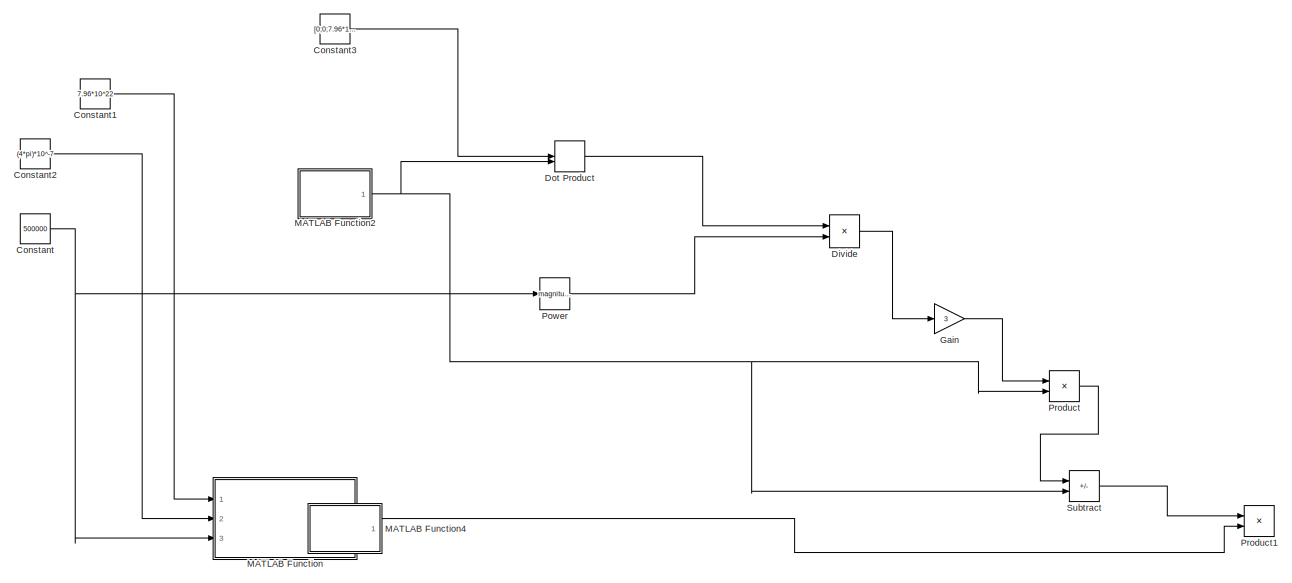
[diagram: root canvas - part 1/3, top right region]
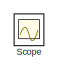
[diagram: root canvas - part 2/3, top left region]
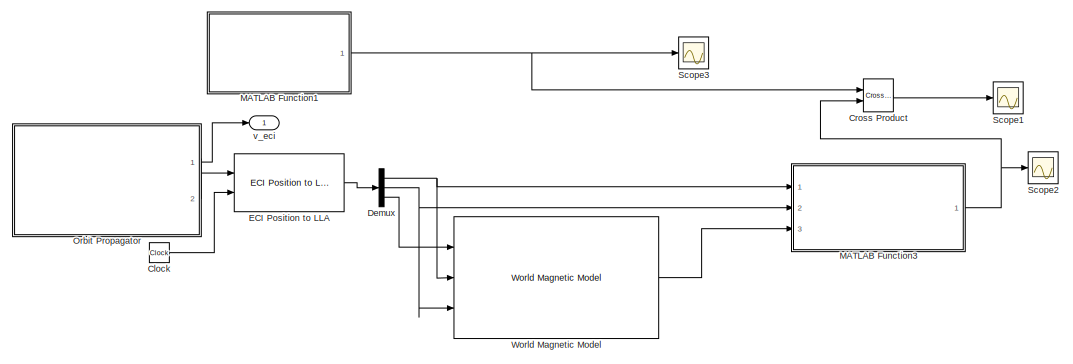
[diagram: root canvas - part 3/3, bottom center region]
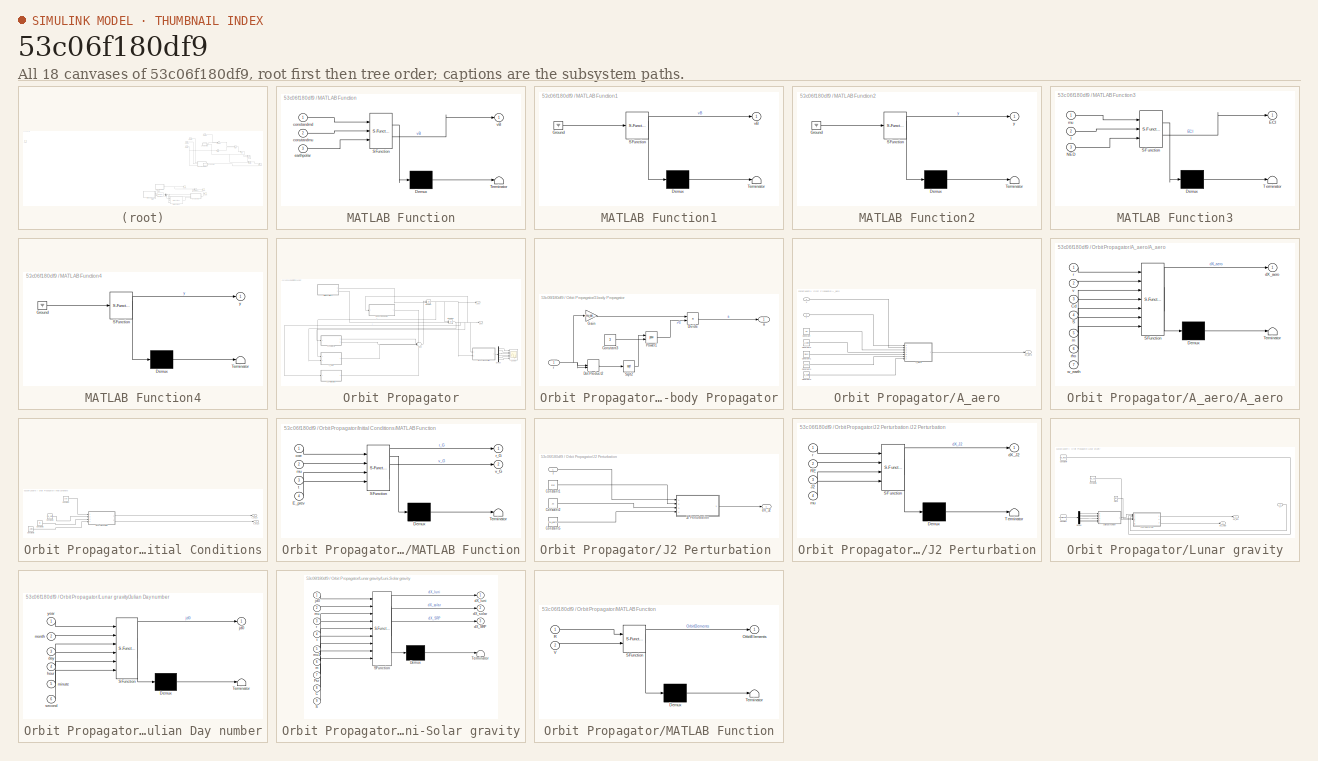
[diagram: thumbnail index - all 18 canvases of the model, root first then tree order]
MODEL slx_53c06f180df9
KIND model
CONFIG AbsTol = auto
CONFIG EnableMultiTasking = off
CONFIG FixedStep = auto
CONFIG MaxStep = auto
CONFIG MinStep = auto
CONFIG RelTol = 1e-3
CONFIG SampleTimeConstraint = Unconstrained
CONFIG SolverName = VariableStepAuto
CONFIG StartTime = 0.0
CONFIG StopTime = 10.0
BLOCK [Clock] Clock
BLOCK [Constant] Constant
  Commented = on
  Value = 500000
BLOCK [Constant] Constant1
  Commented = on
  Value = 7.96*10^22
BLOCK [Constant] Constant2
  Commented = on
  Value = (4*pi)*10^-7
BLOCK [Constant] Constant3
  Commented = on
  Value = [0;0;7.96*10^22]
BLOCK [Reference] Cross Product  REF=vrlib/Utilities/Cross Product
  Ports = [2, 1]
  SourceBlock = vrlib/Utilities/Cross Product
  SourceProductBaseCode = SL
  SourceType = Cross Product
BLOCK [Demux] Demux
  Outputs = 3
  Ports = [1, 3]
BLOCK [Product] Divide
  Commented = on
  Inputs = */
  Ports = [2, 1]
BLOCK [DotProduct] Dot Product
  Commented = on
  OutDataTypeStr = Inherit: Inherit via internal rule
BLOCK [Reference] ECI Position to LLA  REF=aerolibtransform2/ECI Position to LLA
  AttributesFormatString = %<red>
  Ports = [2, 1]
  SourceBlock = aerolibtransform2/ECI Position to LLA
  SourceProductBaseCode = AE
  SourceType = ECItoLLA
BLOCK [Gain] Gain
  Commented = on
  Gain = 3
BLOCK [SubSystem] MATLAB Function
  Commented = on
  ErrorFcn = Stateflow.Translate.translate
  PermitHierarchicalResolution = ExplicitOnly
  Ports = [3, 1]
  RequestExecContextInheritance = off
  SFBlockType = MATLAB Function
  TreatAsAtomicUnit = on
BLOCK [Demux] MATLAB Function/ Demux 
  Outputs = 1
  Ports = [1, 1]
BLOCK [S-Function] MATLAB Function/ SFunction 
  EnableBusSupport = on
  FunctionName = sf_sfun
  PortCounts = [3 2]
  Ports = [3, 2]
  SFcnIsStateOwnerBlock = off
  SFunctionDeploymentMode = off
  Tag = Stateflow S-Function 2
BLOCK [Terminator] MATLAB Function/ Terminator 
BLOCK [Inport] MATLAB Function/constandmd
BLOCK [Inport] MATLAB Function/constandmu
  Port = 2
BLOCK [Inport] MATLAB Function/earthpolar
  Port = 3
BLOCK [Outport] MATLAB Function/vB
BLOCK [SubSystem] MATLAB Function1
  ErrorFcn = Stateflow.Translate.translate
  PermitHierarchicalResolution = ExplicitOnly
  Ports = [0, 1]
  RequestExecContextInheritance = off
  SFBlockType = MATLAB Function
  TreatAsAtomicUnit = on
BLOCK [Demux] MATLAB Function1/ Demux 
  Outputs = 1
  Ports = [1, 1]
BLOCK [Ground] MATLAB Function1/ Ground 
BLOCK [S-Function] MATLAB Function1/ SFunction 
  EnableBusSupport = on
  FunctionName = sf_sfun
  PortCounts = [1 2]
  Ports = [1, 2]
  SFcnIsStateOwnerBlock = off
  SFunctionDeploymentMode = off
  Tag = Stateflow S-Function 1
BLOCK [Terminator] MATLAB Function1/ Terminator 
BLOCK [Outport] MATLAB Function1/vB
BLOCK [SubSystem] MATLAB Function2
  Commented = on
  ErrorFcn = Stateflow.Translate.translate
  PermitHierarchicalResolution = ExplicitOnly
  Ports = [0, 1]
  RequestExecContextInheritance = off
  SFBlockType = MATLAB Function
  TreatAsAtomicUnit = on
BLOCK [Demux] MATLAB Function2/ Demux 
  Outputs = 1
  Ports = [1, 1]
BLOCK [Ground] MATLAB Function2/ Ground 
BLOCK [S-Function] MATLAB Function2/ SFunction 
  EnableBusSupport = on
  FunctionName = sf_sfun
  PortCounts = [1 2]
  Ports = [1, 2]
  SFcnIsStateOwnerBlock = off
  SFunctionDeploymentMode = off
  Tag = Stateflow S-Function 3
BLOCK [Terminator] MATLAB Function2/ Terminator 
BLOCK [Outport] MATLAB Function2/y
BLOCK [SubSystem] MATLAB Function3
  ErrorFcn = Stateflow.Translate.translate
  PermitHierarchicalResolution = ExplicitOnly
  Ports = [3, 1]
  RequestExecContextInheritance = off
  SFBlockType = MATLAB Function
  TreatAsAtomicUnit = on
BLOCK [Demux] MATLAB Function3/ Demux 
  Outputs = 1
  Ports = [1, 1]
BLOCK [S-Function] MATLAB Function3/ SFunction 
  EnableBusSupport = on
  FunctionName = sf_sfun
  PortCounts = [3 2]
  Ports = [3, 2]
  SFcnIsStateOwnerBlock = off
  SFunctionDeploymentMode = off
  Tag = Stateflow S-Function 11
BLOCK [Terminator] MATLAB Function3/ Terminator 
BLOCK [Outport] MATLAB Function3/ECI
BLOCK [Inport] MATLAB Function3/NED
  Port = 3
BLOCK [Inport] MATLAB Function3/l
  Port = 2
BLOCK [Inport] MATLAB Function3/mu
BLOCK [SubSystem] MATLAB Function4
  Commented = on
  ErrorFcn = Stateflow.Translate.translate
  PermitHierarchicalResolution = ExplicitOnly
  Ports = [0, 1]
  RequestExecContextInheritance = off
  SFBlockType = MATLAB Function
  TreatAsAtomicUnit = on
BLOCK [Demux] MATLAB Function4/ Demux 
  Outputs = 1
  Ports = [1, 1]
BLOCK [Ground] MATLAB Function4/ Ground 
BLOCK [S-Function] MATLAB Function4/ SFunction 
  EnableBusSupport = on
  FunctionName = sf_sfun
  PortCounts = [1 2]
  Ports = [1, 2]
  SFcnIsStateOwnerBlock = off
  SFunctionDeploymentMode = off
  Tag = Stateflow S-Function 10
BLOCK [Terminator] MATLAB Function4/ Terminator 
BLOCK [Outport] MATLAB Function4/y
BLOCK [SubSystem] Orbit Propagator
  Ports = [0, 2]
  RequestExecContextInheritance = off
BLOCK [SubSystem] Orbit Propagator/2-body Propagator
  Ports = [1, 1]
  RequestExecContextInheritance = off
BLOCK [Constant] Orbit Propagator/2-body Propagator/Constant3
  Value = 3
BLOCK [Product] Orbit Propagator/2-body Propagator/Divide
  Inputs = */
  Ports = [2, 1]
BLOCK [DotProduct] Orbit Propagator/2-body Propagator/Dot Product2
  OutDataTypeStr = Inherit: Inherit via internal rule
BLOCK [Gain] Orbit Propagator/2-body Propagator/Gain
  Gain = -mu_earth
BLOCK [Math] Orbit Propagator/2-body Propagator/Power1
  Operator = pow
  Ports = [2, 1]
  SignedPower = on
BLOCK [Sqrt] Orbit Propagator/2-body Propagator/Sqrt2
BLOCK [Outport] Orbit Propagator/2-body Propagator/a
  VectorParamsAs1DForOutWhenUnconnected = off
BLOCK [Inport] Orbit Propagator/2-body Propagator/r
BLOCK [SubSystem] Orbit Propagator/A_aero
  Commented = on
  Ports = [2, 1]
  RequestExecContextInheritance = off
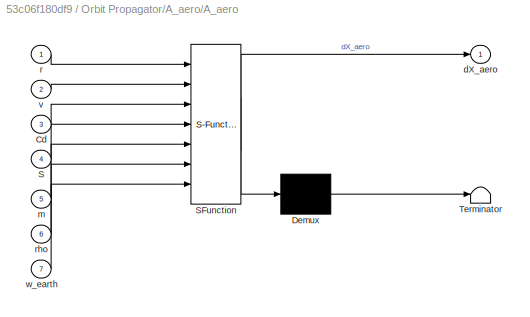
BLOCK [SubSystem] Orbit Propagator/A_aero/A_aero
  ErrorFcn = Stateflow.Translate.translate
  PermitHierarchicalResolution = ExplicitOnly
  Ports = [7, 1]
  RequestExecContextInheritance = off
  SFBlockType = MATLAB Function
  TreatAsAtomicUnit = on
BLOCK [Demux] Orbit Propagator/A_aero/A_aero/ Demux 
  Outputs = 1
  Ports = [1, 1]
BLOCK [S-Function] Orbit Propagator/A_aero/A_aero/ SFunction 
  EnableBusSupport = on
  FunctionName = sf_sfun
  PortCounts = [7 2]
  Ports = [7, 2]
  SFcnIsStateOwnerBlock = off
  SFunctionDeploymentMode = off
  Tag = Stateflow S-Function 4
BLOCK [Terminator] Orbit Propagator/A_aero/A_aero/ Terminator 
BLOCK [Inport] Orbit Propagator/A_aero/A_aero/Cd
  Port = 3
BLOCK [Inport] Orbit Propagator/A_aero/A_aero/S
  Port = 4
BLOCK [Outport] Orbit Propagator/A_aero/A_aero/dX_aero
  VectorParamsAs1DForOutWhenUnconnected = off
BLOCK [Inport] Orbit Propagator/A_aero/A_aero/m
  Port = 5
BLOCK [Inport] Orbit Propagator/A_aero/A_aero/r
BLOCK [Inport] Orbit Propagator/A_aero/A_aero/rho
  Port = 6
BLOCK [Inport] Orbit Propagator/A_aero/A_aero/v
  Port = 2
BLOCK [Inport] Orbit Propagator/A_aero/A_aero/w_earth
  Port = 7
BLOCK [Constant] Orbit Propagator/A_aero/Constant
  Value = Cd
BLOCK [Constant] Orbit Propagator/A_aero/Constant1
  Value = mass
BLOCK [Constant] Orbit Propagator/A_aero/Constant2
  Value = S_norm
BLOCK [Constant] Orbit Propagator/A_aero/Constant3
  Value = w_earth
BLOCK [Constant] Orbit Propagator/A_aero/Constant4
  Value = 2.01e-12
BLOCK [Outport] Orbit Propagator/A_aero/dX_aero
  VectorParamsAs1DForOutWhenUnconnected = off
BLOCK [Inport] Orbit Propagator/A_aero/r
  Port = 2
BLOCK [Inport] Orbit Propagator/A_aero/v
BLOCK [Demux] Orbit Propagator/Demux
  Outputs = 6
  Ports = [1, 6]
BLOCK [SubSystem] Orbit Propagator/Initial Conditions
  Ports = [0, 2]
  RequestExecContextInheritance = off
BLOCK [Constant] Orbit Propagator/Initial Conditions/Constant
  Value = coe
BLOCK [Constant] Orbit Propagator/Initial Conditions/Constant1
  Value = mu_earth
BLOCK [Constant] Orbit Propagator/Initial Conditions/Constant2
  Value = t0
BLOCK [Constant] Orbit Propagator/Initial Conditions/Constant3
  Value = E_prev
BLOCK [SubSystem] Orbit Propagator/Initial Conditions/MATLAB Function
  ErrorFcn = Stateflow.Translate.translate
  PermitHierarchicalResolution = ExplicitOnly
  Ports = [4, 2]
  RequestExecContextInheritance = off
  SFBlockType = MATLAB Function
  TreatAsAtomicUnit = on
BLOCK [Demux] Orbit Propagator/Initial Conditions/MATLAB Function/ Demux 
  Outputs = 1
  Ports = [1, 1]
BLOCK [S-Function] Orbit Propagator/Initial Conditions/MATLAB Function/ SFunction 
  EnableBusSupport = on
  FunctionName = sf_sfun
  PortCounts = [4 3]
  Ports = [4, 3]
  SFcnIsStateOwnerBlock = off
  SFunctionDeploymentMode = off
  Tag = Stateflow S-Function 5
BLOCK [Terminator] Orbit Propagator/Initial Conditions/MATLAB Function/ Terminator 
BLOCK [Inport] Orbit Propagator/Initial Conditions/MATLAB Function/E_prev
  Port = 4
BLOCK [Inport] Orbit Propagator/Initial Conditions/MATLAB Function/coe
BLOCK [Inport] Orbit Propagator/Initial Conditions/MATLAB Function/mu
  Port = 2
BLOCK [Outport] Orbit Propagator/Initial Conditions/MATLAB Function/r_G
  VectorParamsAs1DForOutWhenUnconnected = off
BLOCK [Inport] Orbit Propagator/Initial Conditions/MATLAB Function/t
  Port = 3
BLOCK [Outport] Orbit Propagator/Initial Conditions/MATLAB Function/v_G
  Port = 2
  VectorParamsAs1DForOutWhenUnconnected = off
BLOCK [Outport] Orbit Propagator/Initial Conditions/r_eci_0
  Port = 2
  VectorParamsAs1DForOutWhenUnconnected = off
BLOCK [Outport] Orbit Propagator/Initial Conditions/v_eci_0
  VectorParamsAs1DForOutWhenUnconnected = off
BLOCK [Integrator] Orbit Propagator/Integrator
  InitialCondition = v0
  InitialConditionSource = external
  Ports = [2, 1]
BLOCK [Integrator] Orbit Propagator/Integrator1
  InitialCondition = v0
  InitialConditionSource = external
  Ports = [2, 1]
BLOCK [SubSystem] Orbit Propagator/J2 Perturbation 
  Ports = [1, 1]
  RequestExecContextInheritance = off
BLOCK [Constant] Orbit Propagator/J2 Perturbation /Constant1
  Value = RE
BLOCK [Constant] Orbit Propagator/J2 Perturbation /Constant2
  Value = J2
BLOCK [Constant] Orbit Propagator/J2 Perturbation /Constant5
  Value = mu_earth
BLOCK [SubSystem] Orbit Propagator/J2 Perturbation /J2 Perturbation
  ErrorFcn = Stateflow.Translate.translate
  PermitHierarchicalResolution = ExplicitOnly
  Ports = [4, 1]
  RequestExecContextInheritance = off
  SFBlockType = MATLAB Function
  TreatAsAtomicUnit = on
BLOCK [Demux] Orbit Propagator/J2 Perturbation /J2 Perturbation/ Demux 
  Outputs = 1
  Ports = [1, 1]
BLOCK [S-Function] Orbit Propagator/J2 Perturbation /J2 Perturbation/ SFunction 
  EnableBusSupport = on
  FunctionName = sf_sfun
  PortCounts = [4 2]
  Ports = [4, 2]
  SFcnIsStateOwnerBlock = off
  SFunctionDeploymentMode = off
  Tag = Stateflow S-Function 6
BLOCK [Terminator] Orbit Propagator/J2 Perturbation /J2 Perturbation/ Terminator 
BLOCK [Inport] Orbit Propagator/J2 Perturbation /J2 Perturbation/J2
  Port = 3
BLOCK [Inport] Orbit Propagator/J2 Perturbation /J2 Perturbation/RE
  Port = 2
BLOCK [Outport] Orbit Propagator/J2 Perturbation /J2 Perturbation/dX_J2
  VectorParamsAs1DForOutWhenUnconnected = off
BLOCK [Inport] Orbit Propagator/J2 Perturbation /J2 Perturbation/mu
  Port = 4
BLOCK [Inport] Orbit Propagator/J2 Perturbation /J2 Perturbation/r
BLOCK [Outport] Orbit Propagator/J2 Perturbation /dX_J2
  VectorParamsAs1DForOutWhenUnconnected = off
BLOCK [Inport] Orbit Propagator/J2 Perturbation /r
BLOCK [SubSystem] Orbit Propagator/Lunar gravity
  Commented = on
  Ports = [1, 2]
  RequestExecContextInheritance = off
BLOCK [Clock] Orbit Propagator/Lunar gravity/Clock
BLOCK [Constant] Orbit Propagator/Lunar gravity/Constant
  Value = [year,month,day,hours,minutes,seconds]
BLOCK [Constant] Orbit Propagator/Lunar gravity/Constant4
  Value = mu_moon
BLOCK [Constant] Orbit Propagator/Lunar gravity/Constant6
  Value = mu_sun
BLOCK [Demux] Orbit Propagator/Lunar gravity/Demux
  Outputs = 6
  Ports = [1, 6]
BLOCK [SubSystem] Orbit Propagator/Lunar gravity/Julian Day number
  ErrorFcn = Stateflow.Translate.translate
  PermitHierarchicalResolution = ExplicitOnly
  Ports = [6, 1]
  RequestExecContextInheritance = off
  SFBlockType = MATLAB Function
  TreatAsAtomicUnit = on
BLOCK [Demux] Orbit Propagator/Lunar gravity/Julian Day number/ Demux 
  Outputs = 1
  Ports = [1, 1]
BLOCK [S-Function] Orbit Propagator/Lunar gravity/Julian Day number/ SFunction 
  EnableBusSupport = on
  FunctionName = sf_sfun
  PortCounts = [6 2]
  Ports = [6, 2]
  SFcnIsStateOwnerBlock = off
  SFunctionDeploymentMode = off
  Tag = Stateflow S-Function 7
BLOCK [Terminator] Orbit Propagator/Lunar gravity/Julian Day number/ Terminator 
BLOCK [Inport] Orbit Propagator/Lunar gravity/Julian Day number/day
  Port = 3
BLOCK [Inport] Orbit Propagator/Lunar gravity/Julian Day number/hour
  Port = 4
BLOCK [Outport] Orbit Propagator/Lunar gravity/Julian Day number/jd0
  VectorParamsAs1DForOutWhenUnconnected = off
BLOCK [Inport] Orbit Propagator/Lunar gravity/Julian Day number/minute
  Port = 5
BLOCK [Inport] Orbit Propagator/Lunar gravity/Julian Day number/month
  Port = 2
BLOCK [Inport] Orbit Propagator/Lunar gravity/Julian Day number/second
  Port = 6
BLOCK [Inport] Orbit Propagator/Lunar gravity/Julian Day number/year
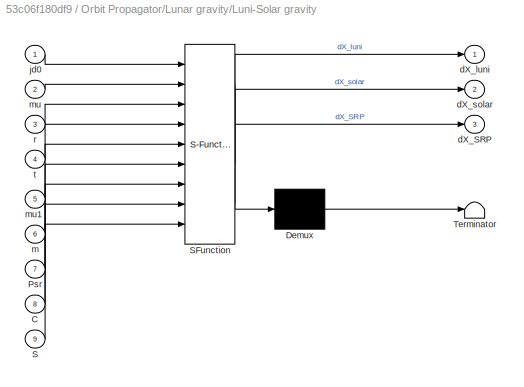
BLOCK [SubSystem] Orbit Propagator/Lunar gravity/Luni-Solar gravity
  ErrorFcn = Stateflow.Translate.translate
  PermitHierarchicalResolution = ExplicitOnly
  Ports = [9, 3]
  RequestExecContextInheritance = off
  SFBlockType = MATLAB Function
  TreatAsAtomicUnit = on
BLOCK [Demux] Orbit Propagator/Lunar gravity/Luni-Solar gravity/ Demux 
  Outputs = 1
  Ports = [1, 1]
BLOCK [S-Function] Orbit Propagator/Lunar gravity/Luni-Solar gravity/ SFunction 
  EnableBusSupport = on
  FunctionName = sf_sfun
  PortCounts = [9 4]
  Ports = [9, 4]
  SFcnIsStateOwnerBlock = off
  SFunctionDeploymentMode = off
  Tag = Stateflow S-Function 8
BLOCK [Terminator] Orbit Propagator/Lunar gravity/Luni-Solar gravity/ Terminator 
BLOCK [Inport] Orbit Propagator/Lunar gravity/Luni-Solar gravity/C
  Port = 8
BLOCK [Inport] Orbit Propagator/Lunar gravity/Luni-Solar gravity/Psr
  Port = 7
BLOCK [Inport] Orbit Propagator/Lunar gravity/Luni-Solar gravity/S
  Port = 9
BLOCK [Outport] Orbit Propagator/Lunar gravity/Luni-Solar gravity/dX_SRP
  Port = 3
  VectorParamsAs1DForOutWhenUnconnected = off
BLOCK [Outport] Orbit Propagator/Lunar gravity/Luni-Solar gravity/dX_luni
  VectorParamsAs1DForOutWhenUnconnected = off
BLOCK [Outport] Orbit Propagator/Lunar gravity/Luni-Solar gravity/dX_solar
  Port = 2
  VectorParamsAs1DForOutWhenUnconnected = off
BLOCK [Inport] Orbit Propagator/Lunar gravity/Luni-Solar gravity/jd0
BLOCK [Inport] Orbit Propagator/Lunar gravity/Luni-Solar gravity/m
  Port = 6
BLOCK [Inport] Orbit Propagator/Lunar gravity/Luni-Solar gravity/mu
  Port = 2
BLOCK [Inport] Orbit Propagator/Lunar gravity/Luni-Solar gravity/mu1
  Port = 5
BLOCK [Inport] Orbit Propagator/Lunar gravity/Luni-Solar gravity/r
  Port = 3
BLOCK [Inport] Orbit Propagator/Lunar gravity/Luni-Solar gravity/t
  Port = 4
BLOCK [Outport] Orbit Propagator/Lunar gravity/dX_luni
  VectorParamsAs1DForOutWhenUnconnected = off
BLOCK [Outport] Orbit Propagator/Lunar gravity/dX_solar
  Port = 2
  VectorParamsAs1DForOutWhenUnconnected = off
BLOCK [Inport] Orbit Propagator/Lunar gravity/r
BLOCK [SubSystem] Orbit Propagator/MATLAB Function
  ErrorFcn = Stateflow.Translate.translate
  PermitHierarchicalResolution = ExplicitOnly
  Ports = [2, 1]
  RequestExecContextInheritance = off
  SFBlockType = MATLAB Function
  TreatAsAtomicUnit = on
BLOCK [Demux] Orbit Propagator/MATLAB Function/ Demux 
  Outputs = 1
  Ports = [1, 1]
BLOCK [S-Function] Orbit Propagator/MATLAB Function/ SFunction 
  EnableBusSupport = on
  FunctionName = sf_sfun
  PortCounts = [2 2]
  Ports = [2, 2]
  SFcnIsStateOwnerBlock = off
  SFunctionDeploymentMode = off
  Tag = Stateflow S-Function 9
BLOCK [Terminator] Orbit Propagator/MATLAB Function/ Terminator 
BLOCK [Outport] Orbit Propagator/MATLAB Function/OrbitElements
  VectorParamsAs1DForOutWhenUnconnected = off
BLOCK [Inport] Orbit Propagator/MATLAB Function/R
BLOCK [Inport] Orbit Propagator/MATLAB Function/V
  Port = 2
BLOCK [Scope] Orbit Propagator/Scope
  Floating = off
  NumInputPorts = 6
  Ports = [6]
  ScopeSpecificationString = Simulink.scopes.TimeScopeBlockCfg('CurrentConfiguration', extmgr.ConfigurationSet(extmgr.Configuration('Core','General UI',true),extmgr.Configuration('Core','Source UI',true),extmgr.Configuration('Sources','WiredSimulink',true,'DataLoggingVariableName','ScopeData2'),extmgr.Configuration('Visuals','Time Domain',true,'SerializedDisplays',{struct('MinYLimReal','6606562.10759','MaxYLimReal','7662454.0...<+4798ch>
BLOCK [Sum] Orbit Propagator/Sum
  Inputs = +++++
  Ports = [5, 1]
BLOCK [Outport] Orbit Propagator/r_eci
  Port = 2
  VectorParamsAs1DForOutWhenUnconnected = off
BLOCK [Outport] Orbit Propagator/v_eci
  VectorParamsAs1DForOutWhenUnconnected = off
BLOCK [Math] Power
  Commented = on
  Operator = magnitude^2
  Ports = [1, 1]
BLOCK [Product] Product
  Commented = on
  Ports = [2, 1]
BLOCK [Product] Product1
  Commented = on
  Ports = [2, 1]
BLOCK [Scope] Scope
  Floating = off
  IOType = viewer
  NumInputPorts = 1
  Ports = []
  ScopeSpecificationString = Simulink.scopes.TimeScopeBlockCfg('CurrentConfiguration', extmgr.ConfigurationSet(extmgr.Configuration('Core','General UI',true),extmgr.Configuration('Core','Source UI',true),extmgr.Configuration('Sources','WiredSimulink',true),extmgr.Configuration('Visuals','Time Domain',true,'SerializedDisplays',{struct('MinYLimReal','-10.00000','MaxYLimReal','10.00000','YLabelReal','','MinYLimMag','0.00000','Ma...<+1357ch>
BLOCK [Scope] Scope1
  Floating = off
  NumInputPorts = 1
  Ports = [1]
  ScopeSpecificationString = Simulink.scopes.TimeScopeBlockCfg('CurrentConfiguration', extmgr.ConfigurationSet(extmgr.Configuration('Core','General UI',true),extmgr.Configuration('Core','Source UI',true),extmgr.Configuration('Sources','WiredSimulink',true,'DataLoggingVariableName','ScopeData1'),extmgr.Configuration('Visuals','Time Domain',true,'SerializedDisplays',{struct('MinYLimReal','-6.14848','MaxYLimReal','6.14799','YLab...<+1444ch>
BLOCK [Scope] Scope2
  Floating = off
  NumInputPorts = 1
  Ports = [1]
  ScopeSpecificationString = Simulink.scopes.TimeScopeBlockCfg('CurrentConfiguration', extmgr.ConfigurationSet(extmgr.Configuration('Core','General UI',true),extmgr.Configuration('Core','Source UI',true),extmgr.Configuration('Sources','WiredSimulink',true,'DataLoggingVariableName','ScopeData1'),extmgr.Configuration('Visuals','Time Domain',true,'SerializedDisplays',{struct('MinYLimReal','-5064.60625','MaxYLimReal','55240.27055...<+1504ch>
BLOCK [Scope] Scope3
  Floating = off
  NumInputPorts = 1
  Ports = [1]
  ScopeSpecificationString = Simulink.scopes.TimeScopeBlockCfg('CurrentConfiguration', extmgr.ConfigurationSet(extmgr.Configuration('Core','General UI',true),extmgr.Configuration('Core','Source UI',true),extmgr.Configuration('Sources','WiredSimulink',true,'DataLoggingVariableName','ScopeData3'),extmgr.Configuration('Visuals','Time Domain',true,'SerializedDisplays',{struct('MinYLimReal','-0.00001','MaxYLimReal','0.00011','YLab...<+1453ch>
BLOCK [Sum] Subtract
  Commented = on
  IconShape = rectangular
  Inputs = +-
  Ports = [2, 1]
BLOCK [Reference] World Magnetic Model  REF=aerolibgravity2/World Magnetic Model
  AttributesFormatString = %<model>
  Ports = [3, 1]
  SourceBlock = aerolibgravity2/World Magnetic Model
  SourceProductBaseCode = AE
  SourceType = WorldMagneticModel
BLOCK [Outport] v_eci
  VectorParamsAs1DForOutWhenUnconnected = off
LINE Clock:1 -> ECI Position to LLA:2
LINE Constant1:1 -> MATLAB Function:1
LINE Constant2:1 -> MATLAB Function:2
LINE Constant3:1 -> Dot Product:1
NET Constant:1 -> MATLAB Function:3, Power:1
LINE Cross Product:1 -> Scope1:1
NET Demux:1 -> MATLAB Function3:1, World Magnetic Model:2
NET Demux:2 -> MATLAB Function3:2, World Magnetic Model:3
LINE Demux:3 -> World Magnetic Model:1
LINE Divide:1 -> Gain:1
LINE Dot Product:1 -> Divide:1
LINE ECI Position to LLA:1 -> Demux:1
LINE Gain:1 -> Product:1
NET MATLAB Function1:1 -> Cross Product:1, Scope3:1
NET MATLAB Function2:1 -> Dot Product:2, Product:2, Subtract:2
NET MATLAB Function3:1 -> Cross Product:2, Scope2:1
LINE MATLAB Function:1 -> Product1:2
LINE Orbit Propagator/2-body Propagator/Constant3:1 -> Orbit Propagator/2-body Propagator/Power1:2
LINE Orbit Propagator/2-body Propagator/Divide:1 -> Orbit Propagator/2-body Propagator/a:1
LINE Orbit Propagator/2-body Propagator/Dot Product2:1 -> Orbit Propagator/2-body Propagator/Sqrt2:1
LINE Orbit Propagator/2-body Propagator/Gain:1 -> Orbit Propagator/2-body Propagator/Divide:1
LINE Orbit Propagator/2-body Propagator/Power1:1 -> Orbit Propagator/2-body Propagator/Divide:2
LINE Orbit Propagator/2-body Propagator/Sqrt2:1 -> Orbit Propagator/2-body Propagator/Power1:1
NET Orbit Propagator/2-body Propagator/r:1 -> Orbit Propagator/2-body Propagator/Dot Product2:1, Orbit Propagator/2-body Propagator/Dot Product2:2, Orbit Propagator/2-body Propagator/Gain:1
LINE Orbit Propagator/2-body Propagator:1 -> Orbit Propagator/Sum:1
LINE Orbit Propagator/A_aero/A_aero:1 -> Orbit Propagator/A_aero/dX_aero:1
LINE Orbit Propagator/A_aero/Constant1:1 -> Orbit Propagator/A_aero/A_aero:5
LINE Orbit Propagator/A_aero/Constant2:1 -> Orbit Propagator/A_aero/A_aero:4
LINE Orbit Propagator/A_aero/Constant3:1 -> Orbit Propagator/A_aero/A_aero:7
LINE Orbit Propagator/A_aero/Constant4:1 -> Orbit Propagator/A_aero/A_aero:6
LINE Orbit Propagator/A_aero/Constant:1 -> Orbit Propagator/A_aero/A_aero:3
LINE Orbit Propagator/A_aero/r:1 -> Orbit Propagator/A_aero/A_aero:1
LINE Orbit Propagator/A_aero/v:1 -> Orbit Propagator/A_aero/A_aero:2
LINE Orbit Propagator/A_aero:1 -> Orbit Propagator/Sum:4
LINE Orbit Propagator/Demux:1 -> Orbit Propagator/Scope:1
LINE Orbit Propagator/Demux:2 -> Orbit Propagator/Scope:2
LINE Orbit Propagator/Demux:3 -> Orbit Propagator/Scope:3
LINE Orbit Propagator/Demux:4 -> Orbit Propagator/Scope:4
LINE Orbit Propagator/Demux:5 -> Orbit Propagator/Scope:5
LINE Orbit Propagator/Demux:6 -> Orbit Propagator/Scope:6
LINE Orbit Propagator/Initial Conditions/Constant1:1 -> Orbit Propagator/Initial Conditions/MATLAB Function:2
LINE Orbit Propagator/Initial Conditions/Constant2:1 -> Orbit Propagator/Initial Conditions/MATLAB Function:3
LINE Orbit Propagator/Initial Conditions/Constant3:1 -> Orbit Propagator/Initial Conditions/MATLAB Function:4
LINE Orbit Propagator/Initial Conditions/Constant:1 -> Orbit Propagator/Initial Conditions/MATLAB Function:1
LINE Orbit Propagator/Initial Conditions/MATLAB Function:1 -> Orbit Propagator/Initial Conditions/r_eci_0:1
LINE Orbit Propagator/Initial Conditions/MATLAB Function:2 -> Orbit Propagator/Initial Conditions/v_eci_0:1
LINE Orbit Propagator/Initial Conditions:1 -> Orbit Propagator/Integrator:2
LINE Orbit Propagator/Initial Conditions:2 -> Orbit Propagator/Integrator1:2
NET Orbit Propagator/Integrator1:1 -> Orbit Propagator/2-body Propagator:1, Orbit Propagator/A_aero:2, Orbit Propagator/J2 Perturbation :1, Orbit Propagator/Lunar gravity:1, Orbit Propagator/MATLAB Function:1, Orbit Propagator/r_eci:1
NET Orbit Propagator/Integrator:1 -> Orbit Propagator/A_aero:1, Orbit Propagator/Integrator1:1, Orbit Propagator/MATLAB Function:2, Orbit Propagator/v_eci:1
LINE Orbit Propagator/J2 Perturbation /Constant1:1 -> Orbit Propagator/J2 Perturbation /J2 Perturbation:2
LINE Orbit Propagator/J2 Perturbation /Constant2:1 -> Orbit Propagator/J2 Perturbation /J2 Perturbation:3
LINE Orbit Propagator/J2 Perturbation /Constant5:1 -> Orbit Propagator/J2 Perturbation /J2 Perturbation:4
LINE Orbit Propagator/J2 Perturbation /J2 Perturbation:1 -> Orbit Propagator/J2 Perturbation /dX_J2:1
LINE Orbit Propagator/J2 Perturbation /r:1 -> Orbit Propagator/J2 Perturbation /J2 Perturbation:1
LINE Orbit Propagator/J2 Perturbation :1 -> Orbit Propagator/Sum:5
LINE Orbit Propagator/Lunar gravity/Clock:1 -> Orbit Propagator/Lunar gravity/Luni-Solar gravity:4
LINE Orbit Propagator/Lunar gravity/Constant4:1 -> Orbit Propagator/Lunar gravity/Luni-Solar gravity:2
LINE Orbit Propagator/Lunar gravity/Constant6:1 -> Orbit Propagator/Lunar gravity/Luni-Solar gravity:5
LINE Orbit Propagator/Lunar gravity/Constant:1 -> Orbit Propagator/Lunar gravity/Demux:1
LINE Orbit Propagator/Lunar gravity/Demux:1 -> Orbit Propagator/Lunar gravity/Julian Day number:1
LINE Orbit Propagator/Lunar gravity/Demux:2 -> Orbit Propagator/Lunar gravity/Julian Day number:2
LINE Orbit Propagator/Lunar gravity/Demux:3 -> Orbit Propagator/Lunar gravity/Julian Day number:3
LINE Orbit Propagator/Lunar gravity/Demux:4 -> Orbit Propagator/Lunar gravity/Julian Day number:4
LINE Orbit Propagator/Lunar gravity/Demux:5 -> Orbit Propagator/Lunar gravity/Julian Day number:5
LINE Orbit Propagator/Lunar gravity/Demux:6 -> Orbit Propagator/Lunar gravity/Julian Day number:6
LINE Orbit Propagator/Lunar gravity/Julian Day number:1 -> Orbit Propagator/Lunar gravity/Luni-Solar gravity:1
LINE Orbit Propagator/Lunar gravity/Luni-Solar gravity:1 -> Orbit Propagator/Lunar gravity/dX_luni:1
LINE Orbit Propagator/Lunar gravity/Luni-Solar gravity:2 -> Orbit Propagator/Lunar gravity/dX_solar:1
LINE Orbit Propagator/Lunar gravity/r:1 -> Orbit Propagator/Lunar gravity/Luni-Solar gravity:3
LINE Orbit Propagator/Lunar gravity:1 -> Orbit Propagator/Sum:2
LINE Orbit Propagator/Lunar gravity:2 -> Orbit Propagator/Sum:3
LINE Orbit Propagator/MATLAB Function:1 -> Orbit Propagator/Demux:1
LINE Orbit Propagator/Sum:1 -> Orbit Propagator/Integrator:1
LINE Orbit Propagator:1 -> v_eci:1
LINE Orbit Propagator:2 -> ECI Position to LLA:1
LINE Power:1 -> Divide:2
LINE Product:1 -> Subtract:1
LINE Subtract:1 -> Product1:1
LINE World Magnetic Model:1 -> MATLAB Function3:3
note: NET lines group one-source signal fan-out (src -> all destinations, sorted); 1:1 wires keep LINE
CHART Orbit Propagator/MATLAB Function states=1 transitions=1
  STATE_LABEL 'eML_blk_kernel()'
  STATE_LABEL 'SCRIPT:\nfunction OrbitElements = StateVectorToOrbitElements(R,V)\n%{\nINPUTS:\nR: Radius Vector in ECI [km]\nV: Velocity Vector in ECI [km/s]\n\nOUTPUTS:\nStruct called "OrbitElements" with the format:\n    \'a\'     Semimajor Axis [m]\n    \'e\'     Eccentricity Magnitude\n    \'i\'     Inclination [deg]\n    \'w\'     Argument of Periapse [deg]\n    \'RAAN\'  Right Ascension of the Ascending Node [deg]\n    \'v\'     Tr...<+1671ch>'
CHART MATLAB Function4 states=1 transitions=1
  STATE_LABEL 'eML_blk_kernel()'
  STATE_LABEL 'SCRIPT:\nfunction y = fcn()\n\nt = 0:1:2592000; %every second for a month\na = 6920*10^3;\nmu = 3.986*10^14;\nt0 = 0;\ne = 0.007;\ni = 97.4*pi/180; %radian\nw = 0.005*pi/180; %rad\nbig_w = 229.5*pi/180; %rad\n%calculate the rectum\np = a*(1 - e^2);\nT = 2*pi*(a^3/mu)^(1/2)\n\nM = sqrt(mu/a^3)*(t - t0);\n\nE = Kepler_Newton(e,M);\n\n\ntheta = 2*atan(sqrt((1+e)/(1-e))*tan(E/2));\n\nC_3w = [\n        cos(w) sin(w) 0;\n     ...<+526ch>'
CHART MATLAB Function3 states=1 transitions=1
  STATE_LABEL 'eML_blk_kernel()'
  STATE_LABEL "SCRIPT:\nfunction ECI  = NEDtoECI(mu, l, NED)\n    \n    DCM = [-sin(mu)*cos(l)  -sin(mu)*sin(l)  cos(mu) ;  -sin(l)  cos(l)  0 ; -cos(mu)*cos(l)  -cos(mu)*sin(l)  -sin(mu)];\n    dcmtran = DCM.';\n    ned =NED.'\n    disp(NED);\n    ECEF = ned*dcmtran;\n    utc = [2019 1 4 12 0 0];\n    %ecef = ECEF.'\n    DCM2 = [ cos(mu) sin(mu) 0; -sin(mu) cos(mu) 0; 0 0 1];\n    dcmtran2 = DCM.';\n    eci = ECEF*dcmtran2...<+54ch>"
CHART MATLAB Function1 states=1 transitions=1
  STATE_LABEL 'eML_blk_kernel()'
  STATE_LABEL "SCRIPT:\nfunction vB  = magneticresidual()\n entryone = (5+5)*rand(1);\n entrytwo = 10*rand(1);\n entrythree = 10*rand(1);\n    \n%lastvec = sqrt(0.002^2-entryone^2-entrytwo^2);\n\nv = [ entryone entrytwo entrythree];\nvnor = norm(v);\nvb = 0.0001*[(entryone/norm(v)) (entrytwo/norm(v)) (entrythree/norm(v))];\nvB = vb.'\nend\n"
CHART MATLAB Function states=1 transitions=1
  STATE_LABEL 'eML_blk_kernel()'
  STATE_LABEL 'SCRIPT:\nfunction vB  = fludensity(constandmd,constandmu,earthpolar)\n\nvB = (constandmu*constandmd)/4*pi*earthpolar\n\n\n'
CHART MATLAB Function2 states=1 transitions=1
  STATE_LABEL 'eML_blk_kernel()'
  STATE_LABEL 'SCRIPT:\nfunction y = fcn()\n\nt = 0:1:2592000; %every second for a month\na = 6920*10^3;\nmu = 3.986*10^14;\nt0 = 0;\ne = 0.007;\ni = 97.4*pi/180; %radian\nw = 0.005*pi/180; %rad\nbig_w = 229.5*pi/180; %rad\n%calculate the rectum\np = a*(1 - e^2);\nT = 2*pi*(a^3/mu)^(1/2)\n\nM = sqrt(mu/a^3)*(t - t0);\n\nE = Kepler_Newton(e,M);\n\n\ntheta = 2*atan(sqrt((1+e)/(1-e))*tan(E/2));\n\nC_3w = [\n        cos(w) sin(w) 0;\n     ...<+526ch>'
CHART Orbit Propagator/A_aero/A_aero states=1 transitions=1
  STATE_LABEL 'eML_blk_kernel()'
  STATE_LABEL 'SCRIPT:\nfunction dX_aero = Aero(r,v,Cd,S,m,rho,w_earth)\nsg = (Cd*S/2*m);\nva = v - cross(w_earth,r);\nv_a = norm(va);\n\ndX_aero = sg*rho*(v_a^2)*(va/v_a);\n\nend\n'
CHART Orbit Propagator/Initial Conditions/MATLAB Function states=1 transitions=1
  STATE_LABEL 'eML_blk_kernel()'
  STATE_LABEL 'SCRIPT:\nfunction [r_G,v_G] = OrbMech(coe,mu, t, E_prev)\n%ORBMECH models the orbital mechanics of the spacecraft\n%   Assuming an ideal, non-perturbed orbit, the position of\n%   the spacecraft (in the inertial frame) is determined, using the ISS\n%   orbital elements\n\na = coe(1);e=coe(2);i=coe(3);raan=coe(4);w = coe(5);t0=coe(6);\n\n% Solve for Eccentric Anomaly (E)\nE_fun = @(E) E-e*sin(E) - sqrt(mu/a^...<+634ch>'
CHART Orbit Propagator/J2 Perturbation /J2 Perturbation states=1 transitions=1
  STATE_LABEL 'eML_blk_kernel()'
  STATE_LABEL 'SCRIPT:\nfunction dX_J2 = J2(r,RE,J2,mu)\nrpp = norm(r);\nxx = r(1); yy = r(2); zz = r(3);\nfac = 3/2*J2*(mu/rpp^2)*(RE/rpp)^2;\ndX_J2 = -fac*[(1 - 5*(zz/rpp)^2)*(xx/rpp) ...\n(1 - 5*(zz/rpp)^2)*(yy/rpp) ...\n(3 - 5*(zz/rpp)^2)*(zz/rpp)];\nend\n'
CHART Orbit Propagator/Lunar gravity/Julian Day number states=1 transitions=1
  STATE_LABEL 'eML_blk_kernel()'
  STATE_LABEL 'SCRIPT:\nfunction jd0 = JDnumber(year,month,day,hour,minute,second)\n% Calculates the JD number for a given year,month and day\n\nj0 = 367*year - fix(7*(year + fix((month + 9)/12))/4) + fix(275*month/9) + day + 1721013.5; \n\nut = hour + minute/60 + second/3600; % UTC time in hour format\n\njd0 = j0 + ut/24; % JD number calculation\n\n\nend\n\n'
CHART Orbit Propagator/Lunar gravity/Luni-Solar gravity states=1 transitions=1
  STATE_LABEL 'eML_blk_kernel()'
  STATE_LABEL 'SCRIPT:\nfunction [dX_luni,dX_solar,dX_SRP] = LuniSolar(jd0,mu,r,t,mu1,m,Psr,C,S)\n% Moon gravity contribution\njd_new = jd0 + t/86400;\nR_moon = Lunargravity(jd_new);\nR_ms = R_moon - r;\nr_ms = norm(R_ms);\nr_moon = norm(R_moon);\n\n% Sun gravity contribution\n[R_sun,u_sun] = Solargravity(jd_new);\nlswitch = los(r,R_sun);\nr_sun = norm(R_sun);\nR_ss = R_sun - r;\nr_ss = norm(R_ss);\nq = dot(r,(2*R_sun - r))/r_...<+202ch>'
CHART  states=0 transitions=0
CHART  states=0 transitions=0
CHART  states=0 transitions=0
CHART  states=0 transitions=0
CHART  states=0 transitions=0
CHART  states=0 transitions=0
CHART  states=0 transitions=0
CHART  states=0 transitions=0
CHART  states=0 transitions=0
CHART  states=0 transitions=0
CHART  states=0 transitions=0
